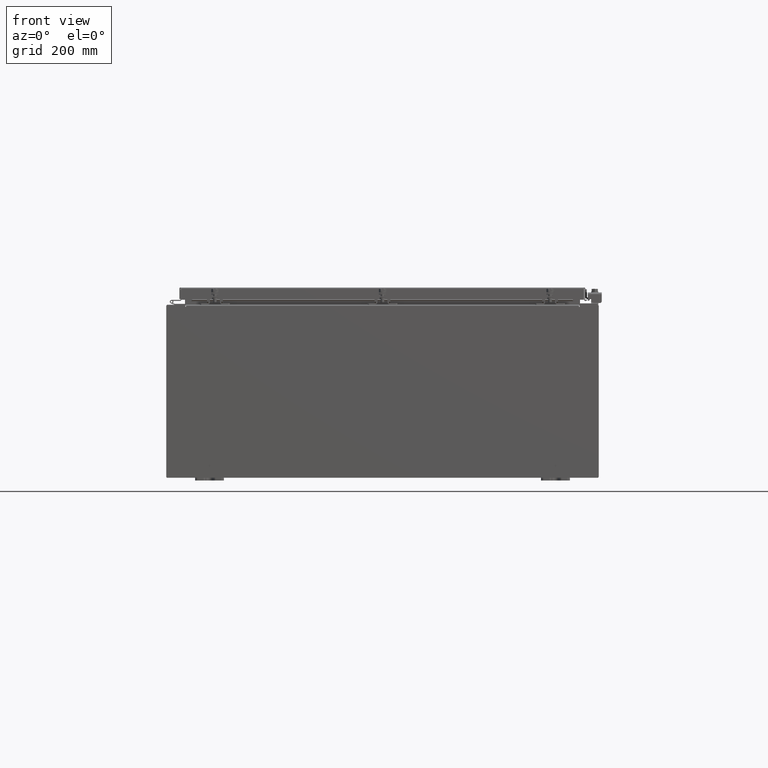
[diagram: clean part render]
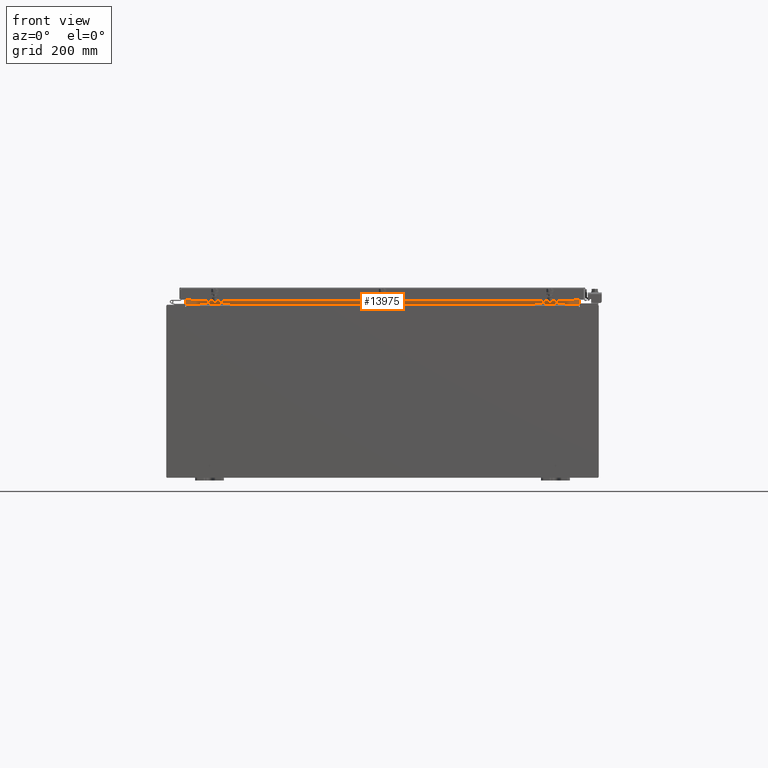
[diagram: same view with one face highlighted and labeled with its STEP entity id]
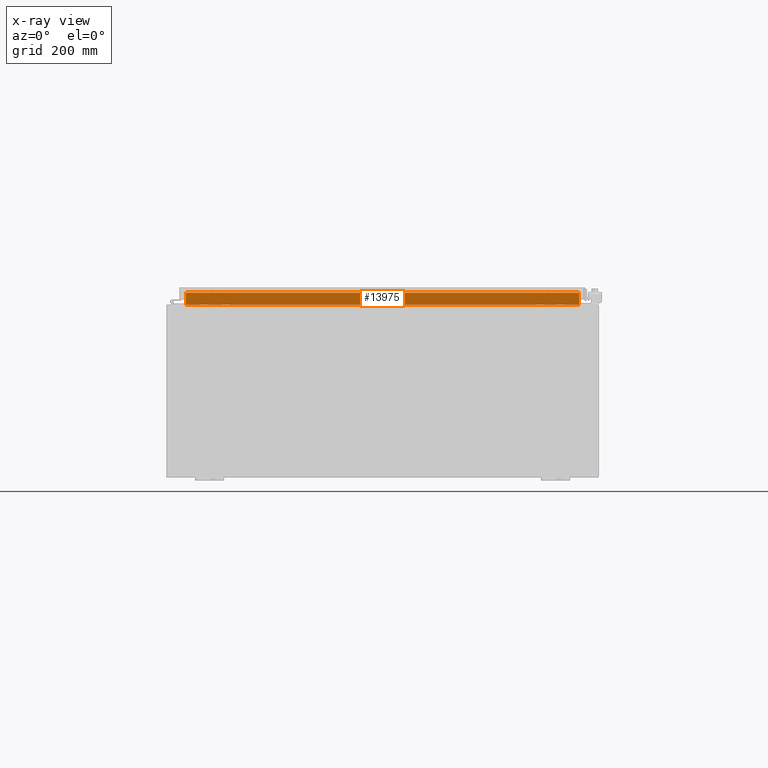
[diagram: x-ray of the same camera — body ghosted, the highlighted face saturated]
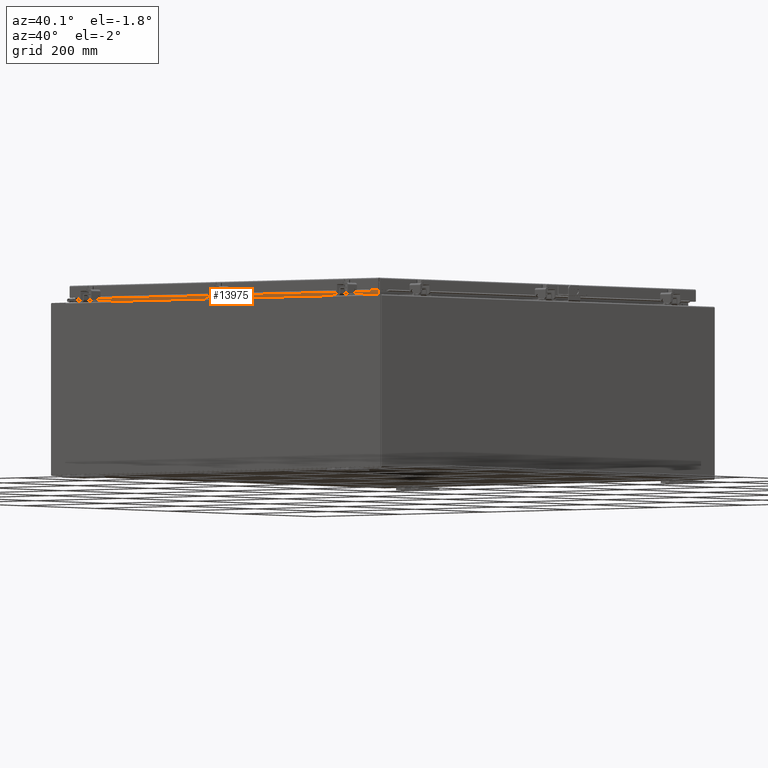
[diagram: same view with one face highlighted and labeled with its STEP entity id]
A machine part, front view. The second image highlights one B-rep face of the part: STEP entity #13975.
The next image is the same camera in x-ray: the body ghosted, the highlighted face saturated — about 0% of this face is hidden behind the body in this view.
A second angle (auxiliary view) of the same face is appended — the face is thin or edge-on in the first view.
In plain terms, the highlighted planar face has unit normal (-0, -1, 0).
Its self-contained STEP definition (entity closure, byte-faithful):
#1552 = EDGE_CURVE ( 'NONE', #31419, #29868, #36427, .T. ) ;
#5745 = LINE ( 'NONE', #38657, #11524 ) ;
#6498 = VERTEX_POINT ( 'NONE', #14718 ) ;
#8058 = CARTESIAN_POINT ( 'NONE',  ( -4.194595811711970300E-016, -1.300299999999999300, 0.0000000000000000000 ) ) ;
#10520 = VECTOR ( 'NONE', #12201, 39.37007874015748100 ) ;
#10943 = EDGE_CURVE ( 'NONE', #29868, #6498, #19528, .T. ) ;
#11400 = CARTESIAN_POINT ( 'NONE',  ( 13.63720000000000000, -1.300299999999999300, 6.013000000000016800 ) ) ;
#11524 = VECTOR ( 'NONE', #11685, 39.37007874015748100 ) ;
#11639 = VERTEX_POINT ( 'NONE', #18393 ) ;
#11685 = DIRECTION ( 'NONE',  ( 1.000000000000000000, 3.225867722578232700E-016, 9.591360755538903600E-016 ) ) ;
#12201 = DIRECTION ( 'NONE',  ( -1.000000000000000000, -3.225867722578232700E-016, -9.992007221626408900E-016 ) ) ;
#13975 = ADVANCED_FACE ( 'NONE', ( #34707 ), #35031, .T. ) ;
#14718 = CARTESIAN_POINT ( 'NONE',  ( -13.63719999999998600, -1.300300000000001300, 6.837599999999989500 ) ) ;
#15309 = ORIENTED_EDGE ( 'NONE', *, *, #1552, .F. ) ;
#16618 = DIRECTION ( 'NONE',  ( 9.992007221626408900E-016, -2.013110121372521300E-016, 1.000000000000000000 ) ) ;
#16757 = ORIENTED_EDGE ( 'NONE', *, *, #10943, .F. ) ;
#16999 = ORIENTED_EDGE ( 'NONE', *, *, #34237, .F. ) ;
#18265 = DIRECTION ( 'NONE',  ( 3.225867722578236700E-016, 1.000000000000000000, 2.013110121372518100E-016 ) ) ;
#18393 = CARTESIAN_POINT ( 'NONE',  ( -13.63719999999999800, -1.300300000000001300, 6.012999999999991000 ) ) ;
#19324 = EDGE_CURVE ( 'NONE', #6498, #11639, #29294, .T. ) ;
#19528 = LINE ( 'NONE', #25605, #10520 ) ;
#20393 = VECTOR ( 'NONE', #27461, 39.37007874015748100 ) ;
#25605 = CARTESIAN_POINT ( 'NONE',  ( 13.63720000000001600, -1.300300000000001300, 6.837600000000017900 ) ) ;
#26768 = CARTESIAN_POINT ( 'NONE',  ( 13.63720000000001600, -1.300299999999999300, 6.925300000000017800 ) ) ;
#27461 = DIRECTION ( 'NONE',  ( -9.992007221626408900E-016, 2.013110121372521300E-016, -1.000000000000000000 ) ) ;
#27656 = ORIENTED_EDGE ( 'NONE', *, *, #19324, .F. ) ;
#29294 = LINE ( 'NONE', #40879, #20393 ) ;
#29868 = VERTEX_POINT ( 'NONE', #31851 ) ;
#31419 = VERTEX_POINT ( 'NONE', #11400 ) ;
#31494 = EDGE_LOOP ( 'NONE', ( #27656, #16757, #15309, #16999 ) ) ;
#31851 = CARTESIAN_POINT ( 'NONE',  ( 13.63720000000001600, -1.300299999999999300, 6.837600000000017900 ) ) ;
#34237 = EDGE_CURVE ( 'NONE', #11639, #31419, #5745, .T. ) ;
#34707 = FACE_OUTER_BOUND ( 'NONE', #31494, .T. ) ;
#35031 = PLANE ( 'NONE',  #40119 ) ;
#36427 = LINE ( 'NONE', #26768, #43302 ) ;
#38657 = CARTESIAN_POINT ( 'NONE',  ( -13.63719999999999800, -1.300300000000001300, 6.012999999999991000 ) ) ;
#40119 = AXIS2_PLACEMENT_3D ( 'NONE', #8058, #18265, #41820 ) ;
#40879 = CARTESIAN_POINT ( 'NONE',  ( -13.63719999999999800, -1.300300000000001300, 5.999999999999990200 ) ) ;
#41820 = DIRECTION ( 'NONE',  ( 9.992007221626408900E-016, -2.013110121372521300E-016, 1.000000000000000000 ) ) ;
#43302 = VECTOR ( 'NONE', #16618, 39.37007874015748100 ) ;